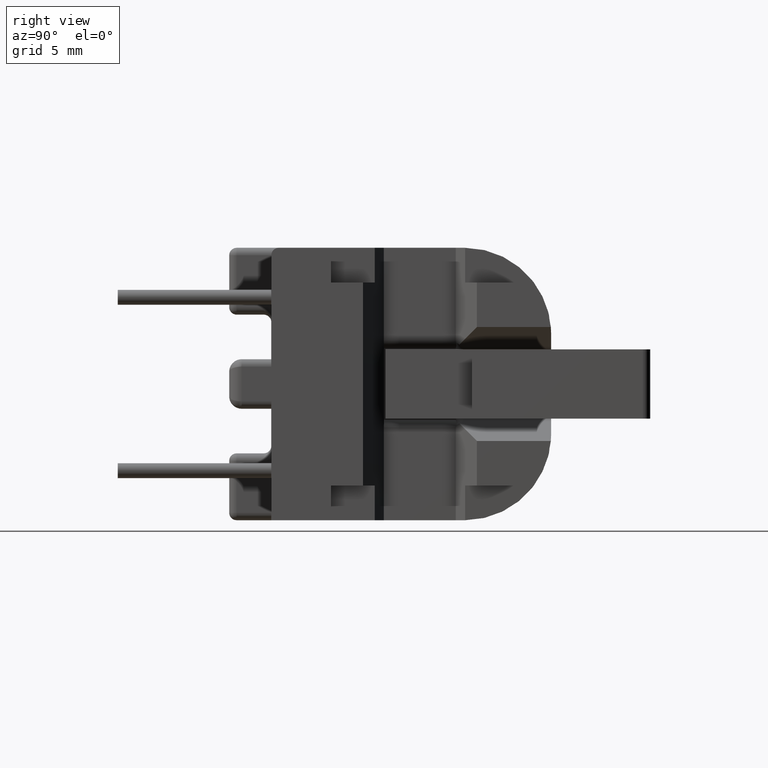
[diagram: clean part render]
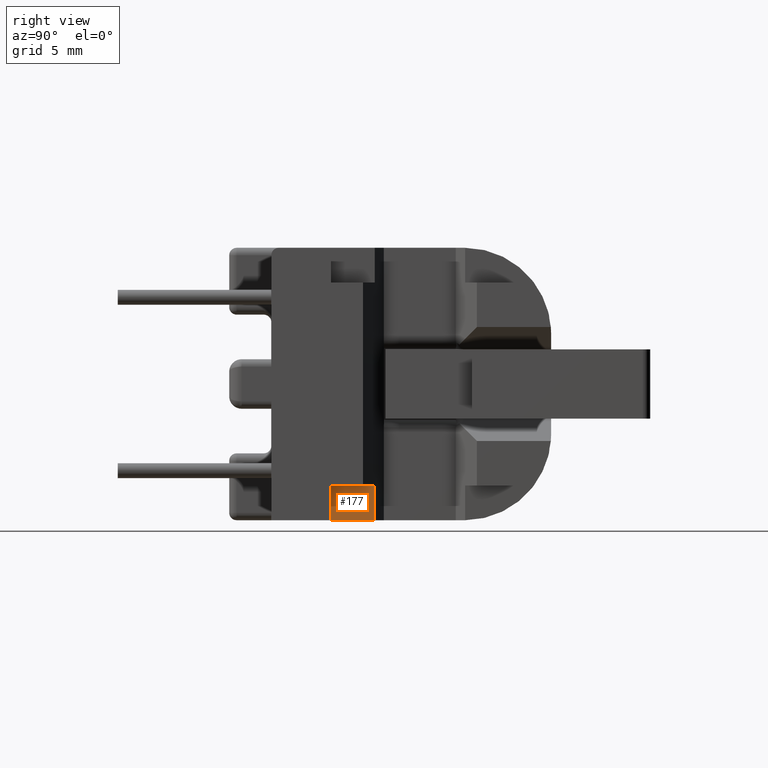
[diagram: same view with one face highlighted and labeled with its STEP entity id]
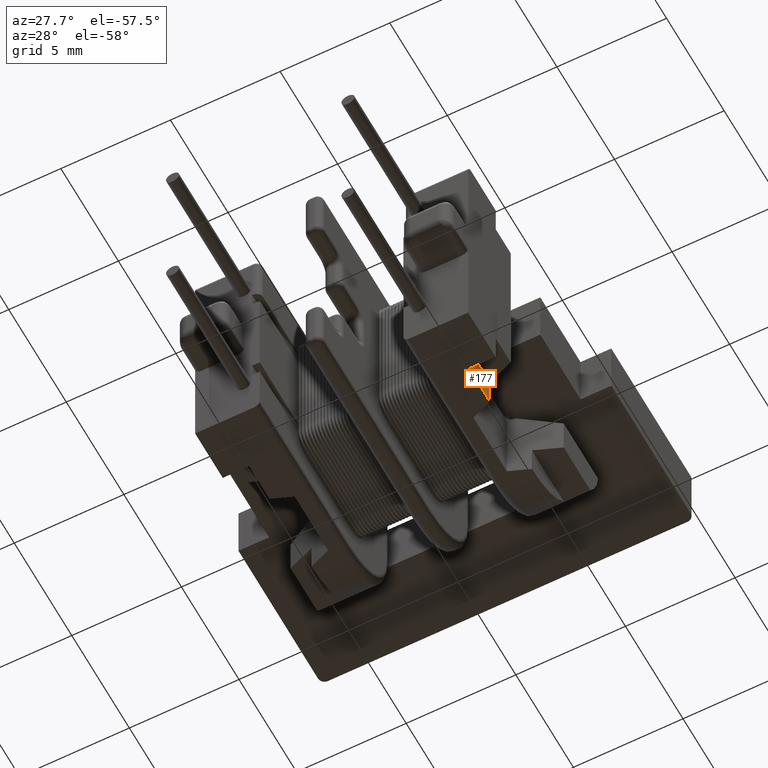
[diagram: same view with one face highlighted and labeled with its STEP entity id]
A machine part, right view. The second image highlights one B-rep face of the part: STEP entity #177.
A second angle (auxiliary view) of the same face is appended — the face is thin or edge-on in the first view.
In plain terms, the highlighted planar face has unit normal (1, 0, 0).
Its self-contained STEP definition (entity closure, byte-faithful):
#118 = LINE ( 'NONE', #24627, #24020 ) ;
#177 = ADVANCED_FACE ( 'NONE', ( #38309 ), #30873, .T. ) ;
#187 = VERTEX_POINT ( 'NONE', #13213 ) ;
#3347 = CARTESIAN_POINT ( 'NONE',  ( 5.025000000000001243, 5.300000000000001599, -4.099999999999999645 ) ) ;
#3526 = VERTEX_POINT ( 'NONE', #36023 ) ;
#7927 = EDGE_CURVE ( 'NONE', #3526, #28024, #118, .T. ) ;
#8481 = VERTEX_POINT ( 'NONE', #33495 ) ;
#10093 = DIRECTION ( 'NONE',  ( 7.228014483236698528E-16, 0.0000000000000000000, -1.000000000000000000 ) ) ;
#13213 = CARTESIAN_POINT ( 'NONE',  ( 5.025000000000002132, -1.825581395348836899, -4.099999999999999645 ) ) ;
#13282 = EDGE_LOOP ( 'NONE', ( #30124, #28054, #18024, #32308 ) ) ;
#14670 = CARTESIAN_POINT ( 'NONE',  ( 5.025000000000002132, -3.600000000000000089, -5.499999999999995559 ) ) ;
#15257 = VECTOR ( 'NONE', #17248, 1000.000000000000000 ) ;
#17248 = DIRECTION ( 'NONE',  ( -7.228014483236699514E-16, 2.857587121279626639E-16, 1.000000000000000000 ) ) ;
#18024 = ORIENTED_EDGE ( 'NONE', *, *, #23721, .F. ) ;
#18470 = EDGE_CURVE ( 'NONE', #187, #8481, #26354, .T. ) ;
#21098 = CARTESIAN_POINT ( 'NONE',  ( 5.025000000000002132, -3.600000000000000089, -5.299999999999998934 ) ) ;
#21363 = DIRECTION ( 'NONE',  ( 0.0000000000000000000, -1.000000000000000000, 0.0000000000000000000 ) ) ;
#21863 = DIRECTION ( 'NONE',  ( -1.266525899875865828E-31, -1.000000000000000000, 1.752245935330108181E-16 ) ) ;
#21966 = DIRECTION ( 'NONE',  ( 1.000000000000000000, 0.0000000000000000000, 7.228014483236698528E-16 ) ) ;
#23353 = CARTESIAN_POINT ( 'NONE',  ( 5.025000000000002132, -1.825581395348837122, -5.299999999999999822 ) ) ;
#23721 = EDGE_CURVE ( 'NONE', #28024, #8481, #33878, .T. ) ;
#24020 = VECTOR ( 'NONE', #21863, 1000.000000000000000 ) ;
#24627 = CARTESIAN_POINT ( 'NONE',  ( 5.025000000000002132, 5.299999999999998934, -5.499999999999997335 ) ) ;
#26015 = AXIS2_PLACEMENT_3D ( 'NONE', #28116, #21966, #10093 ) ;
#26354 = LINE ( 'NONE', #3347, #28679 ) ;
#26969 = DIRECTION ( 'NONE',  ( -7.228014483236698528E-16, 0.0000000000000000000, 1.000000000000000000 ) ) ;
#28024 = VERTEX_POINT ( 'NONE', #14670 ) ;
#28054 = ORIENTED_EDGE ( 'NONE', *, *, #18470, .T. ) ;
#28116 = CARTESIAN_POINT ( 'NONE',  ( 5.025000000000002132, 5.300000000000001599, -5.299999999999998934 ) ) ;
#28679 = VECTOR ( 'NONE', #21363, 1000.000000000000000 ) ;
#30124 = ORIENTED_EDGE ( 'NONE', *, *, #37469, .T. ) ;
#30873 = PLANE ( 'NONE',  #26015 ) ;
#32308 = ORIENTED_EDGE ( 'NONE', *, *, #7927, .F. ) ;
#33495 = CARTESIAN_POINT ( 'NONE',  ( 5.025000000000001243, -3.600000000000000089, -4.099999999999999645 ) ) ;
#33878 = LINE ( 'NONE', #21098, #36232 ) ;
#36023 = CARTESIAN_POINT ( 'NONE',  ( 5.025000000000002132, -1.825581395348837122, -5.499999999999996447 ) ) ;
#36232 = VECTOR ( 'NONE', #26969, 1000.000000000000000 ) ;
#37265 = LINE ( 'NONE', #23353, #15257 ) ;
#37469 = EDGE_CURVE ( 'NONE', #3526, #187, #37265, .T. ) ;
#38309 = FACE_OUTER_BOUND ( 'NONE', #13282, .T. ) ;